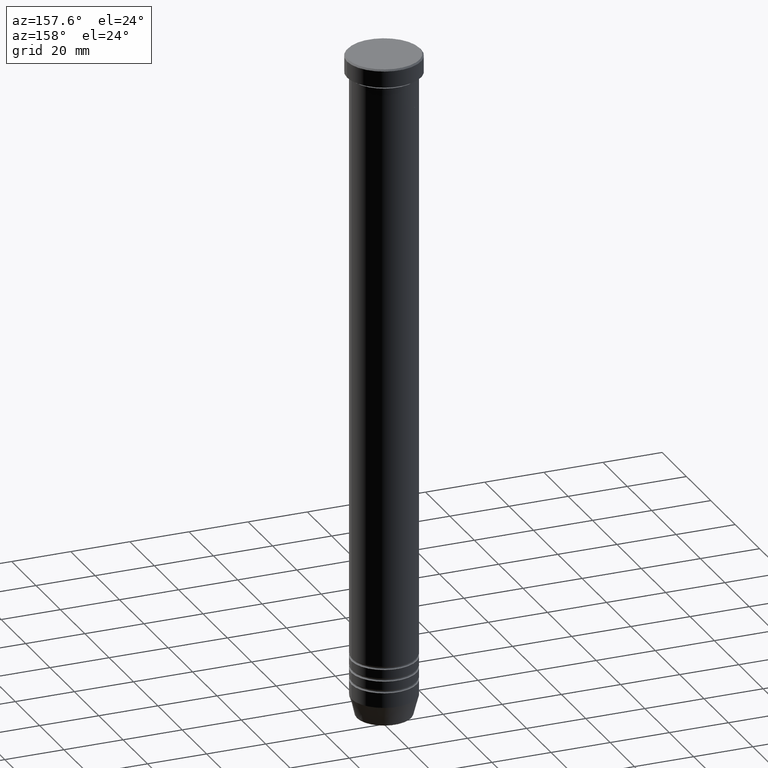
[diagram: clean part render]
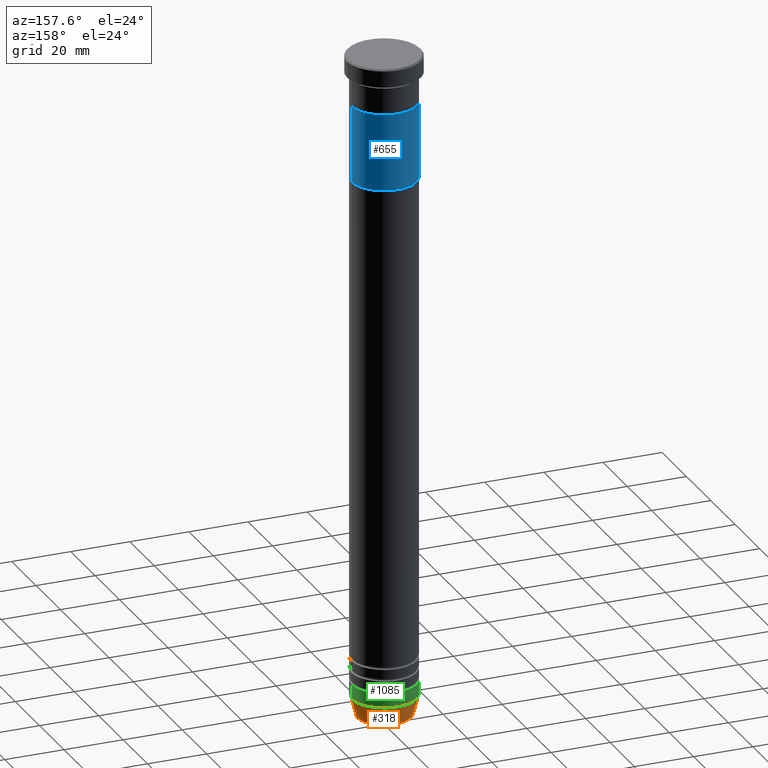
[diagram: same view with three faces highlighted in distinct colors, each labeled with its STEP entity id]
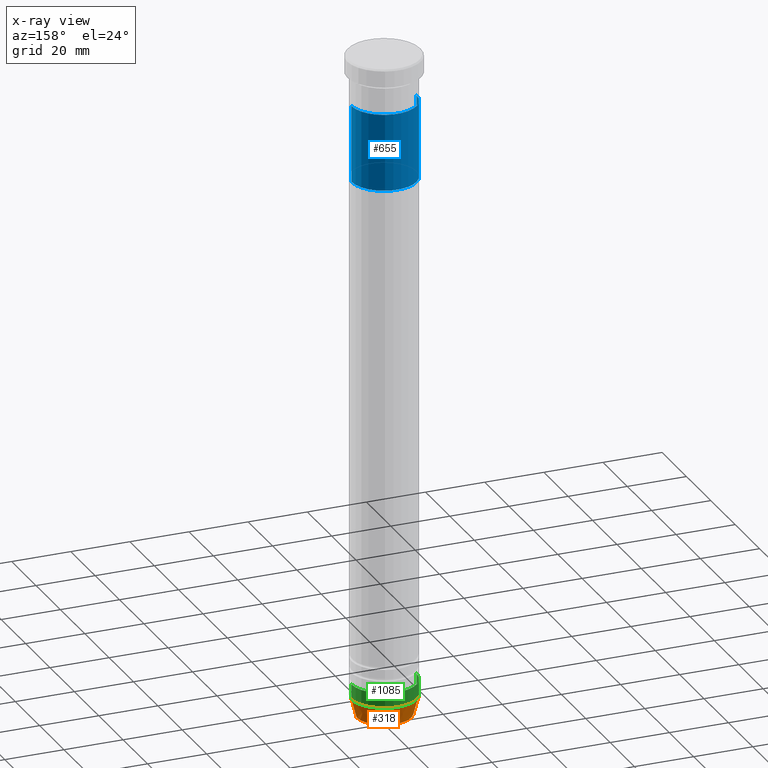
[diagram: x-ray of the same camera — body ghosted, the three highlighted faces saturated]
A machine part, auxiliary view with three faces highlighted in distinct colors.
The next image is the same camera in x-ray (body ghosted, the three faces saturated) — at least one of them is partly hidden behind the body in this view.
Their STEP definitions:

[orange] entity #318 — the highlighted conical surface has half-angle 15 deg.
#6 = CARTESIAN_POINT ( 'NONE',  ( 0.000000000000000000, 0.000000000000000000, -225.9999999999999716 ) ) ;
#30 = EDGE_CURVE ( 'NONE', #889, #613, #636, .T. ) ;
#38 = DIRECTION ( 'NONE',  ( -0.000000000000000000, -0.000000000000000000, 1.000000000000000000 ) ) ;
#47 = CIRCLE ( 'NONE', #772, 11.00000000000000178 ) ;
#52 = ORIENTED_EDGE ( 'NONE', *, *, #30, .T. ) ;
#134 = CARTESIAN_POINT ( 'NONE',  ( 0.000000000000000000, 0.000000000000000000, -218.9999999999999716 ) ) ;
#139 = CARTESIAN_POINT ( 'NONE',  ( 9.223655072137194821, 0.000000000000000000, -225.6294095225512137 ) ) ;
#205 = EDGE_CURVE ( 'NONE', #234, #613, #47, .T. ) ;
#234 = VERTEX_POINT ( 'NONE', #976 ) ;
#303 = DIRECTION ( 'NONE',  ( 1.000000000000000000, 0.000000000000000000, 0.000000000000000000 ) ) ;
#307 = CARTESIAN_POINT ( 'NONE',  ( -11.00000000000000178, 1.347111479062088602E-15, -218.9999999999999716 ) ) ;
#318 = ADVANCED_FACE ( 'NONE', ( #534 ), #526, .T. ) ;
#343 = VECTOR ( 'NONE', #529, 1000.000000000000114 ) ;
#381 = DIRECTION ( 'NONE',  ( -1.000000000000000000, 0.000000000000000000, 0.000000000000000000 ) ) ;
#416 = DIRECTION ( 'NONE',  ( -0.000000000000000000, -0.000000000000000000, 1.000000000000000000 ) ) ;
#458 = VECTOR ( 'NONE', #519, 1000.000000000000114 ) ;
#467 = ORIENTED_EDGE ( 'NONE', *, *, #205, .F. ) ;
#482 = AXIS2_PLACEMENT_3D ( 'NONE', #1011, #640, #381 ) ;
#519 = DIRECTION ( 'NONE',  ( 0.2588190451025206840, 0.000000000000000000, 0.9659258262890683122 ) ) ;
#526 = CONICAL_SURFACE ( 'NONE', #661, 9.124355652982140796, 0.2617993877991493523 ) ;
#529 = DIRECTION ( 'NONE',  ( -0.2588190451025206840, 3.169619151431763092E-17, 0.9659258262890683122 ) ) ;
#534 = FACE_OUTER_BOUND ( 'NONE', #986, .T. ) ;
#594 = DIRECTION ( 'NONE',  ( 1.000000000000000000, 0.000000000000000000, 0.000000000000000000 ) ) ;
#613 = VERTEX_POINT ( 'NONE', #307 ) ;
#636 = LINE ( 'NONE', #1026, #343 ) ;
#640 = DIRECTION ( 'NONE',  ( -0.000000000000000000, -0.000000000000000000, 1.000000000000000000 ) ) ;
#644 = CIRCLE ( 'NONE', #482, 9.223655072137194821 ) ;
#650 = EDGE_CURVE ( 'NONE', #1010, #234, #1069, .T. ) ;
#661 = AXIS2_PLACEMENT_3D ( 'NONE', #6, #38, #303 ) ;
#772 = AXIS2_PLACEMENT_3D ( 'NONE', #134, #416, #594 ) ;
#819 = ORIENTED_EDGE ( 'NONE', *, *, #829, .T. ) ;
#829 = EDGE_CURVE ( 'NONE', #1010, #889, #644, .T. ) ;
#849 = ORIENTED_EDGE ( 'NONE', *, *, #650, .F. ) ;
#889 = VERTEX_POINT ( 'NONE', #1102 ) ;
#976 = CARTESIAN_POINT ( 'NONE',  ( 11.00000000000000178, 0.000000000000000000, -218.9999999999999716 ) ) ;
#986 = EDGE_LOOP ( 'NONE', ( #819, #52, #467, #849 ) ) ;
#1010 = VERTEX_POINT ( 'NONE', #139 ) ;
#1011 = CARTESIAN_POINT ( 'NONE',  ( 0.000000000000000000, 0.000000000000000000, -225.6294095225512137 ) ) ;
#1026 = CARTESIAN_POINT ( 'NONE',  ( -9.124355652982140796, 1.117411294470663595E-15, -225.9999999999999716 ) ) ;
#1060 = CARTESIAN_POINT ( 'NONE',  ( 9.124355652982140796, 0.000000000000000000, -225.9999999999999716 ) ) ;
#1069 = LINE ( 'NONE', #1060, #458 ) ;
#1102 = CARTESIAN_POINT ( 'NONE',  ( -9.223655072137194821, 1.238341722557647596E-15, -225.6294095225512137 ) ) ;

[blue] entity #655 — the highlighted cylindrical surface (edge-blend (fillet) strip) has radius 11 mm, axis along (-0, -0, 1).
#4 = DIRECTION ( 'NONE',  ( -1.000000000000000000, 0.000000000000000000, 0.000000000000000000 ) ) ;
#16 = LINE ( 'NONE', #904, #367 ) ;
#49 = EDGE_CURVE ( 'NONE', #491, #216, #721, .T. ) ;
#89 = CARTESIAN_POINT ( 'NONE',  ( 0.000000000000000000, 0.000000000000000000, -41.99999999999999289 ) ) ;
#105 = DIRECTION ( 'NONE',  ( -1.000000000000000000, 0.000000000000000000, 0.000000000000000000 ) ) ;
#185 = EDGE_CURVE ( 'NONE', #289, #216, #411, .T. ) ;
#198 = CIRCLE ( 'NONE', #856, 11.00000000000000000 ) ;
#216 = VERTEX_POINT ( 'NONE', #504 ) ;
#284 = DIRECTION ( 'NONE',  ( -0.000000000000000000, -0.000000000000000000, 1.000000000000000000 ) ) ;
#289 = VERTEX_POINT ( 'NONE', #450 ) ;
#310 = ORIENTED_EDGE ( 'NONE', *, *, #691, .F. ) ;
#341 = DIRECTION ( 'NONE',  ( 0.000000000000000000, 0.000000000000000000, -1.000000000000000000 ) ) ;
#367 = VECTOR ( 'NONE', #284, 1000.000000000000000 ) ;
#411 = LINE ( 'NONE', #769, #871 ) ;
#430 = ORIENTED_EDGE ( 'NONE', *, *, #185, .F. ) ;
#449 = DIRECTION ( 'NONE',  ( 1.000000000000000000, 0.000000000000000000, 0.000000000000000000 ) ) ;
#450 = CARTESIAN_POINT ( 'NONE',  ( 11.00000000000000000, 0.000000000000000000, -41.99999999999999289 ) ) ;
#491 = VERTEX_POINT ( 'NONE', #940 ) ;
#504 = CARTESIAN_POINT ( 'NONE',  ( 11.00000000000000000, 0.000000000000000000, -16.00000000000000000 ) ) ;
#584 = CARTESIAN_POINT ( 'NONE',  ( -11.00000000000000000, 1.347111479062088207E-15, -41.99999999999999289 ) ) ;
#587 = AXIS2_PLACEMENT_3D ( 'NONE', #89, #1055, #449 ) ;
#595 = EDGE_LOOP ( 'NONE', ( #310, #699, #899, #430 ) ) ;
#608 = CYLINDRICAL_SURFACE ( 'NONE', #587, 11.00000000000000000 ) ;
#655 = ADVANCED_FACE ( 'NONE', ( #710 ), #608, .T. ) ;
#680 = AXIS2_PLACEMENT_3D ( 'NONE', #911, #994, #105 ) ;
#691 = EDGE_CURVE ( 'NONE', #960, #289, #198, .T. ) ;
#699 = ORIENTED_EDGE ( 'NONE', *, *, #810, .T. ) ;
#710 = FACE_OUTER_BOUND ( 'NONE', #595, .T. ) ;
#721 = CIRCLE ( 'NONE', #680, 11.00000000000000000 ) ;
#769 = CARTESIAN_POINT ( 'NONE',  ( 11.00000000000000000, 0.000000000000000000, -41.99999999999999289 ) ) ;
#800 = CARTESIAN_POINT ( 'NONE',  ( 0.000000000000000000, 0.000000000000000000, -41.99999999999999289 ) ) ;
#810 = EDGE_CURVE ( 'NONE', #960, #491, #16, .T. ) ;
#856 = AXIS2_PLACEMENT_3D ( 'NONE', #800, #341, #4 ) ;
#871 = VECTOR ( 'NONE', #1120, 1000.000000000000000 ) ;
#899 = ORIENTED_EDGE ( 'NONE', *, *, #49, .T. ) ;
#904 = CARTESIAN_POINT ( 'NONE',  ( -11.00000000000000000, 1.347111479062088207E-15, -41.99999999999999289 ) ) ;
#911 = CARTESIAN_POINT ( 'NONE',  ( 0.000000000000000000, 0.000000000000000000, -16.00000000000000000 ) ) ;
#940 = CARTESIAN_POINT ( 'NONE',  ( -11.00000000000000000, 1.347111479062088207E-15, -16.00000000000000000 ) ) ;
#960 = VERTEX_POINT ( 'NONE', #584 ) ;
#994 = DIRECTION ( 'NONE',  ( 0.000000000000000000, 0.000000000000000000, -1.000000000000000000 ) ) ;
#1055 = DIRECTION ( 'NONE',  ( -0.000000000000000000, -0.000000000000000000, 1.000000000000000000 ) ) ;
#1120 = DIRECTION ( 'NONE',  ( -0.000000000000000000, -0.000000000000000000, 1.000000000000000000 ) ) ;

[green] entity #1085 — the highlighted cylindrical surface (edge-blend (fillet) strip) has radius 11 mm, axis along (-0, -0, 1).
#40 = LINE ( 'NONE', #60, #68 ) ;
#47 = CIRCLE ( 'NONE', #772, 11.00000000000000178 ) ;
#57 = CARTESIAN_POINT ( 'NONE',  ( 11.00000000000000178, 0.000000000000000000, -213.9999999999999716 ) ) ;
#60 = CARTESIAN_POINT ( 'NONE',  ( 11.00000000000000178, 0.000000000000000000, 0.000000000000000000 ) ) ;
#68 = VECTOR ( 'NONE', #408, 1000.000000000000000 ) ;
#111 = EDGE_CURVE ( 'NONE', #613, #368, #695, .T. ) ;
#134 = CARTESIAN_POINT ( 'NONE',  ( 0.000000000000000000, 0.000000000000000000, -218.9999999999999716 ) ) ;
#205 = EDGE_CURVE ( 'NONE', #234, #613, #47, .T. ) ;
#222 = EDGE_CURVE ( 'NONE', #598, #368, #602, .T. ) ;
#234 = VERTEX_POINT ( 'NONE', #976 ) ;
#249 = CARTESIAN_POINT ( 'NONE',  ( 0.000000000000000000, 0.000000000000000000, -213.9999999999999716 ) ) ;
#254 = FACE_OUTER_BOUND ( 'NONE', #592, .T. ) ;
#260 = CARTESIAN_POINT ( 'NONE',  ( 0.000000000000000000, 0.000000000000000000, 0.000000000000000000 ) ) ;
#265 = DIRECTION ( 'NONE',  ( 1.000000000000000000, 0.000000000000000000, 0.000000000000000000 ) ) ;
#307 = CARTESIAN_POINT ( 'NONE',  ( -11.00000000000000178, 1.347111479062088602E-15, -218.9999999999999716 ) ) ;
#354 = DIRECTION ( 'NONE',  ( -0.000000000000000000, -0.000000000000000000, 1.000000000000000000 ) ) ;
#368 = VERTEX_POINT ( 'NONE', #487 ) ;
#408 = DIRECTION ( 'NONE',  ( -0.000000000000000000, -0.000000000000000000, 1.000000000000000000 ) ) ;
#416 = DIRECTION ( 'NONE',  ( -0.000000000000000000, -0.000000000000000000, 1.000000000000000000 ) ) ;
#420 = AXIS2_PLACEMENT_3D ( 'NONE', #260, #354, #265 ) ;
#487 = CARTESIAN_POINT ( 'NONE',  ( -11.00000000000000178, 1.347111479062088602E-15, -213.9999999999999716 ) ) ;
#497 = DIRECTION ( 'NONE',  ( -0.000000000000000000, -0.000000000000000000, 1.000000000000000000 ) ) ;
#530 = CYLINDRICAL_SURFACE ( 'NONE', #420, 11.00000000000000178 ) ;
#575 = ORIENTED_EDGE ( 'NONE', *, *, #222, .F. ) ;
#592 = EDGE_LOOP ( 'NONE', ( #1101, #827, #575, #1076 ) ) ;
#594 = DIRECTION ( 'NONE',  ( 1.000000000000000000, 0.000000000000000000, 0.000000000000000000 ) ) ;
#598 = VERTEX_POINT ( 'NONE', #57 ) ;
#602 = CIRCLE ( 'NONE', #722, 11.00000000000000178 ) ;
#613 = VERTEX_POINT ( 'NONE', #307 ) ;
#695 = LINE ( 'NONE', #1046, #739 ) ;
#703 = DIRECTION ( 'NONE',  ( 1.000000000000000000, 0.000000000000000000, 0.000000000000000000 ) ) ;
#722 = AXIS2_PLACEMENT_3D ( 'NONE', #249, #1144, #703 ) ;
#739 = VECTOR ( 'NONE', #497, 1000.000000000000000 ) ;
#772 = AXIS2_PLACEMENT_3D ( 'NONE', #134, #416, #594 ) ;
#827 = ORIENTED_EDGE ( 'NONE', *, *, #111, .T. ) ;
#976 = CARTESIAN_POINT ( 'NONE',  ( 11.00000000000000178, 0.000000000000000000, -218.9999999999999716 ) ) ;
#997 = EDGE_CURVE ( 'NONE', #234, #598, #40, .T. ) ;
#1046 = CARTESIAN_POINT ( 'NONE',  ( -11.00000000000000178, 1.347111479062088602E-15, 0.000000000000000000 ) ) ;
#1076 = ORIENTED_EDGE ( 'NONE', *, *, #997, .F. ) ;
#1085 = ADVANCED_FACE ( 'NONE', ( #254 ), #530, .T. ) ;
#1101 = ORIENTED_EDGE ( 'NONE', *, *, #205, .T. ) ;
#1144 = DIRECTION ( 'NONE',  ( -0.000000000000000000, -0.000000000000000000, 1.000000000000000000 ) ) ;